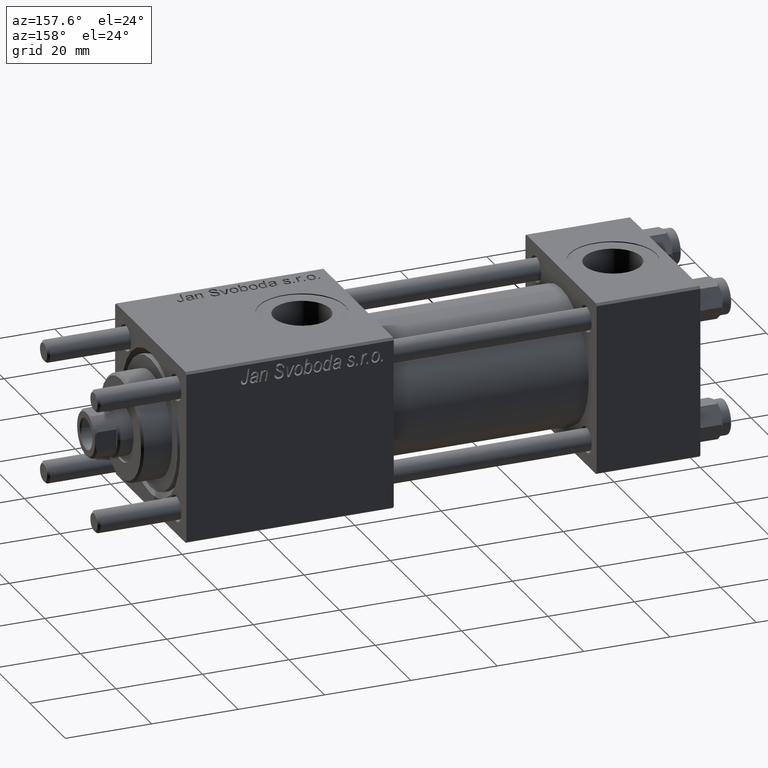
[diagram: clean part render]
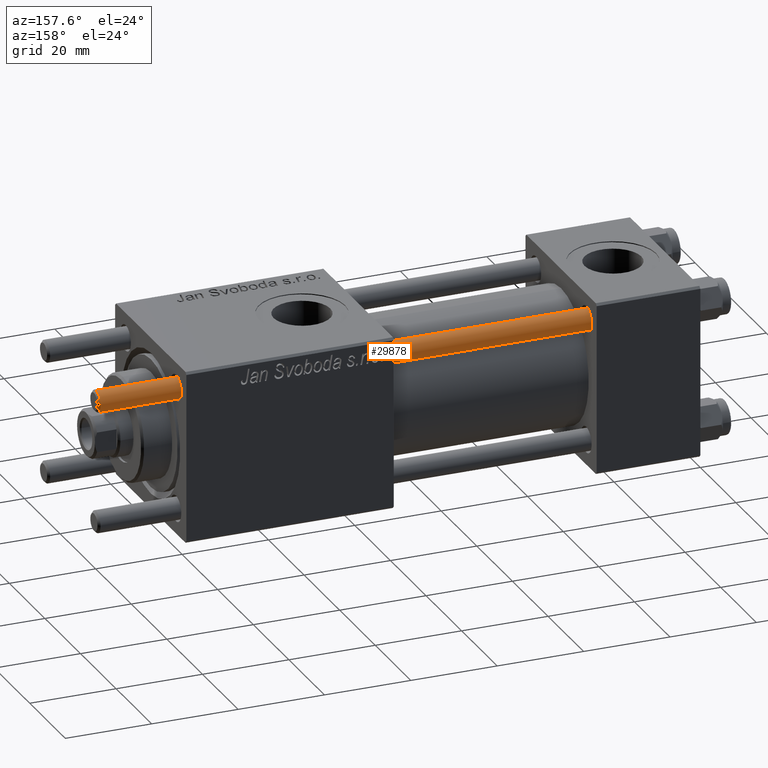
[diagram: same view with one face highlighted and labeled with its STEP entity id]
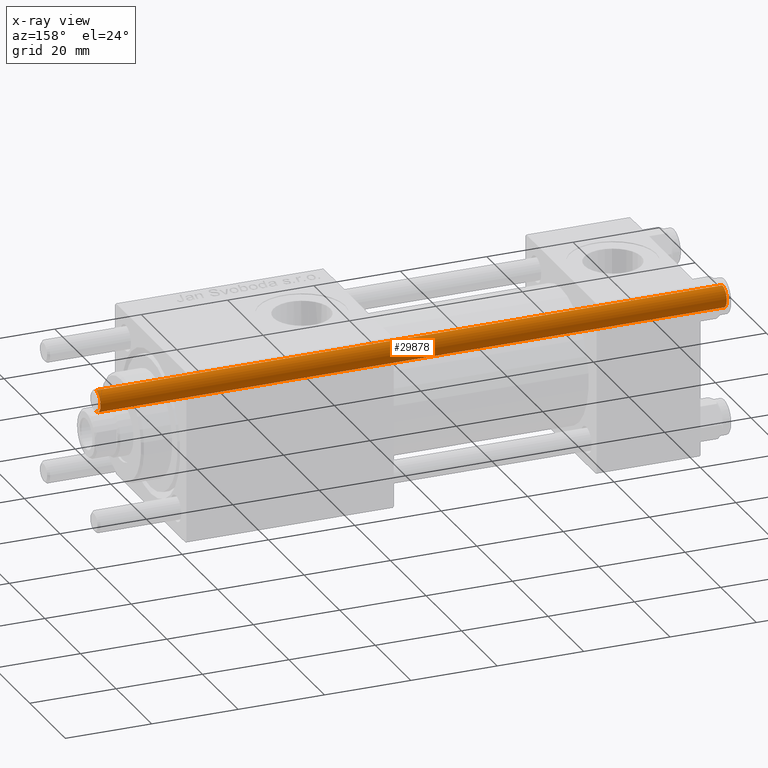
[diagram: x-ray of the same camera — body ghosted, the highlighted face saturated]
A machine part, auxiliary view. The second image highlights one B-rep face of the part: STEP entity #29878.
The next image is the same camera in x-ray: the body ghosted, the highlighted face saturated — about 0% of this face is hidden behind the body in this view.
In plain terms, the highlighted cylindrical surface (edge-blend (fillet) strip) has radius 2.5 mm, axis along (1, -0, -0).
Its self-contained STEP definition (entity closure, byte-faithful):
#521 = DIRECTION ( 'NONE',  ( 1.000000000000000000, 0.000000000000000000, 0.000000000000000000 ) ) ;
#1573 = CARTESIAN_POINT ( 'NONE',  ( 0.000000000000000000, 0.000000000000000000, 146.0000000000000000 ) ) ;
#2145 = CYLINDRICAL_SURFACE ( 'NONE', #21595, 2.500000000000000000 ) ;
#2615 = VERTEX_POINT ( 'NONE', #31223 ) ;
#7688 = ORIENTED_EDGE ( 'NONE', *, *, #39497, .T. ) ;
#8088 = DIRECTION ( 'NONE',  ( 1.000000000000000000, 0.000000000000000000, 0.000000000000000000 ) ) ;
#9698 = DIRECTION ( 'NONE',  ( 0.000000000000000000, 0.000000000000000000, -1.000000000000000000 ) ) ;
#10027 = CIRCLE ( 'NONE', #13661, 2.500000000000000000 ) ;
#10749 = DIRECTION ( 'NONE',  ( -0.000000000000000000, -0.000000000000000000, -1.000000000000000000 ) ) ;
#12207 = CARTESIAN_POINT ( 'NONE',  ( -2.500000000000000000, 0.000000000000000000, 146.0000000000000000 ) ) ;
#13661 = AXIS2_PLACEMENT_3D ( 'NONE', #44427, #9698, #521 ) ;
#13999 = CARTESIAN_POINT ( 'NONE',  ( 0.000000000000000000, 0.000000000000000000, 0.5000000000000559552 ) ) ;
#15374 = VERTEX_POINT ( 'NONE', #27366 ) ;
#17841 = CARTESIAN_POINT ( 'NONE',  ( 2.500000000000000000, 3.061616997868383141E-16, 0.5000000000000559552 ) ) ;
#19643 = DIRECTION ( 'NONE',  ( -1.000000000000000000, 0.000000000000000000, 0.000000000000000000 ) ) ;
#21595 = AXIS2_PLACEMENT_3D ( 'NONE', #1573, #10749, #19643 ) ;
#24423 = VECTOR ( 'NONE', #38398, 1000.000000000000000 ) ;
#25131 = ORIENTED_EDGE ( 'NONE', *, *, #52106, .T. ) ;
#25964 = LINE ( 'NONE', #12207, #48524 ) ;
#26037 = LINE ( 'NONE', #47009, #24423 ) ;
#26432 = AXIS2_PLACEMENT_3D ( 'NONE', #13999, #34219, #8088 ) ;
#27366 = CARTESIAN_POINT ( 'NONE',  ( -2.500000000000000000, 0.000000000000000000, 0.5000000000000559552 ) ) ;
#28161 = ORIENTED_EDGE ( 'NONE', *, *, #53497, .F. ) ;
#29720 = DIRECTION ( 'NONE',  ( -0.000000000000000000, -0.000000000000000000, -1.000000000000000000 ) ) ;
#29878 = ADVANCED_FACE ( 'NONE', ( #41169 ), #2145, .T. ) ;
#31223 = CARTESIAN_POINT ( 'NONE',  ( 2.500000000000000000, 3.061616997868383141E-16, 145.5000000000000284 ) ) ;
#31255 = VERTEX_POINT ( 'NONE', #33018 ) ;
#33018 = CARTESIAN_POINT ( 'NONE',  ( -2.500000000000000000, 0.000000000000000000, 145.5000000000000284 ) ) ;
#34219 = DIRECTION ( 'NONE',  ( -0.000000000000000000, -0.000000000000000000, 1.000000000000000000 ) ) ;
#36084 = EDGE_CURVE ( 'NONE', #2615, #44702, #26037, .T. ) ;
#37471 = CIRCLE ( 'NONE', #26432, 2.500000000000000000 ) ;
#38398 = DIRECTION ( 'NONE',  ( -0.000000000000000000, -0.000000000000000000, -1.000000000000000000 ) ) ;
#39497 = EDGE_CURVE ( 'NONE', #44702, #15374, #37471, .T. ) ;
#41169 = FACE_OUTER_BOUND ( 'NONE', #53116, .T. ) ;
#44427 = CARTESIAN_POINT ( 'NONE',  ( 0.000000000000000000, 0.000000000000000000, 145.5000000000000284 ) ) ;
#44702 = VERTEX_POINT ( 'NONE', #17841 ) ;
#47009 = CARTESIAN_POINT ( 'NONE',  ( 2.500000000000000000, 3.061616997868383141E-16, 146.0000000000000000 ) ) ;
#48524 = VECTOR ( 'NONE', #29720, 1000.000000000000000 ) ;
#49795 = ORIENTED_EDGE ( 'NONE', *, *, #36084, .T. ) ;
#52106 = EDGE_CURVE ( 'NONE', #31255, #2615, #10027, .T. ) ;
#53116 = EDGE_LOOP ( 'NONE', ( #25131, #49795, #7688, #28161 ) ) ;
#53497 = EDGE_CURVE ( 'NONE', #31255, #15374, #25964, .T. ) ;